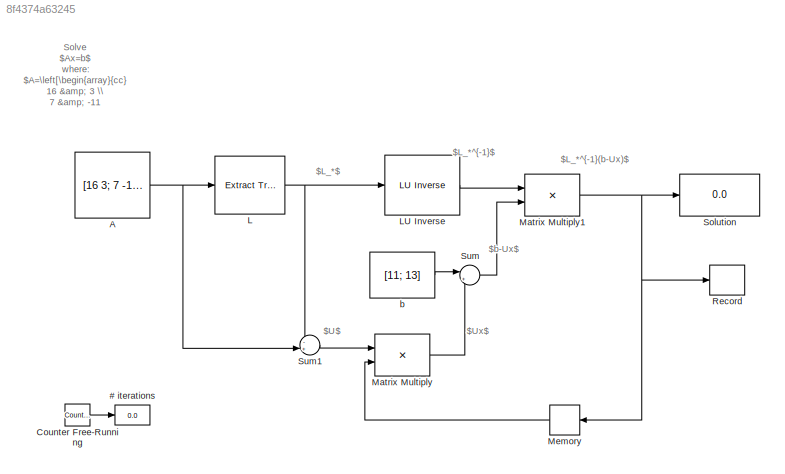
MODEL slx_8f4374a63245
KIND model
CONFIG AbsTol = auto
CONFIG EnableMultiTasking = off
CONFIG FixedStep = 1
CONFIG MaxStep = auto
CONFIG MinStep = auto
CONFIG RelTol = 1e-3
CONFIG SampleTimeConstraint = Unconstrained
CONFIG SolverName = FixedStepDiscrete
CONFIG StartTime = 0.0
CONFIG StopTime = 10
BLOCK [Reference]  LU Inverse  REF=dspinverses/ LU Inverse
  Ports = [1, 1]
  SourceBlock = dspinverses/ LU Inverse
  SourceProductBaseCode = DS
  SourceType = LU Inverse
BLOCK [Display] # iterations
  Decimation = 1
  Ports = [1]
BLOCK [Constant] A
  Value = [16 3; 7 -11]
BLOCK [Reference] Counter Free-Running  REF=simulink/Sources/Counter
Free-Running
  Ports = [0, 1]
  SourceBlock = simulink/Sources/Counter\nFree-Running
  SourceProductBaseCode = SL
  SourceType = Counter Free-Running
BLOCK [Reference] L  REF=dspmtrx3/Extract Triangular
Matrix
  Ports = [1, 1]
  SourceBlock = dspmtrx3/Extract Triangular\nMatrix
  SourceProductBaseCode = DS
  SourceType = dsp.simulink.ExtractTriangularMatrix
BLOCK [Product] Matrix Multiply
  Multiplication = Matrix(*)
  Ports = [2, 1]
BLOCK [Product] Matrix Multiply1
  Multiplication = Matrix(*)
  Ports = [2, 1]
BLOCK [Memory] Memory
  InitialCondition = [1; 1]
  NameLocation = top
BLOCK [Record] Record
  FileSettingsInternal = {"entries":[{"content":{"excelSettings":{"content":{},"type":"Streamout.ExcelSettings"}},"type":"Streamout.FileSettingStorage","uuid":"1f10d9fa-31e5-4a9f-8698-854757a7dd8a"}],"packageUris":["http://schema.mathworks.com/mf0/streamout_blocks/R2020a"],"version":"1.0"}
  Layout = [1 1]
  Ports = [1]
  SignalsInternal = {"entries":[{"content":{"signals":[{"content":{"blockPath":["gauss_seidel/Record"],"channel":[],"dimensions":[2,1],"domain":"gauss_seidel/record","hasChildren":true,"lineColor":"#edb120","plots":[],"port":1,"sid":[],"signalID":62,"signalName":"Matrix Multiply1"},"type":"RecordBlkView.Signal","uuid":"c15fa9f7-8186-4076-943a-5077830479b2"},{"content":{"blockPath":["gauss_seidel/Record"],"channel":[1...<+724ch>
  VisualizationBindings = {"sparklinesplugin":{"info":[{"bindingParametersList":[],"subplotID":1}]}}
BLOCK [Display] Solution
  Decimation = 1
  Ports = [1]
BLOCK [Sum] Sum
  Inputs = |+-
  Ports = [2, 1]
BLOCK [Sum] Sum1
  Inputs = -+|
  Ports = [2, 1]
BLOCK [Constant] b
  Value = [11; 13]
  VectorParams1D = off
ANNOTATION (root): $L_*$
ANNOTATION (root): $L_*^{-1}$
ANNOTATION (root): $L_*^{-1}(b-Ux)$
ANNOTATION (root): $U$
ANNOTATION (root): $Ux$
ANNOTATION (root): $b-Ux$
ANNOTATION (root): Solve $Ax=b$ where: $A=\left[\begin{array}{cc} 16 & 3 \\ 7 & -11 \end{array}\right] \text { and } b=\left[\begin{array}{c} 11 \\ 13 \end{array}\right]$ Initial guess is: $x^{(0)}=\left[\begin{array}{l} 1.0 \\ 1.0 \end{array}\right]$
LINE  LU Inverse:1 -> Matrix Multiply1:1
NET A:1 -> L:1, Sum1:2
LINE Counter Free-Running:1 -> # iterations:1
NET L:1 ->  LU Inverse:1, Sum1:1
NET Matrix Multiply1:1 -> Memory:1, Record:1, Solution:1
LINE Matrix Multiply:1 -> Sum:2
LINE Memory:1 -> Matrix Multiply:2
LINE Sum1:1 -> Matrix Multiply:1
LINE Sum:1 -> Matrix Multiply1:2
LINE b:1 -> Sum:1
note: NET lines group one-source signal fan-out (src -> all destinations, sorted); 1:1 wires keep LINE
